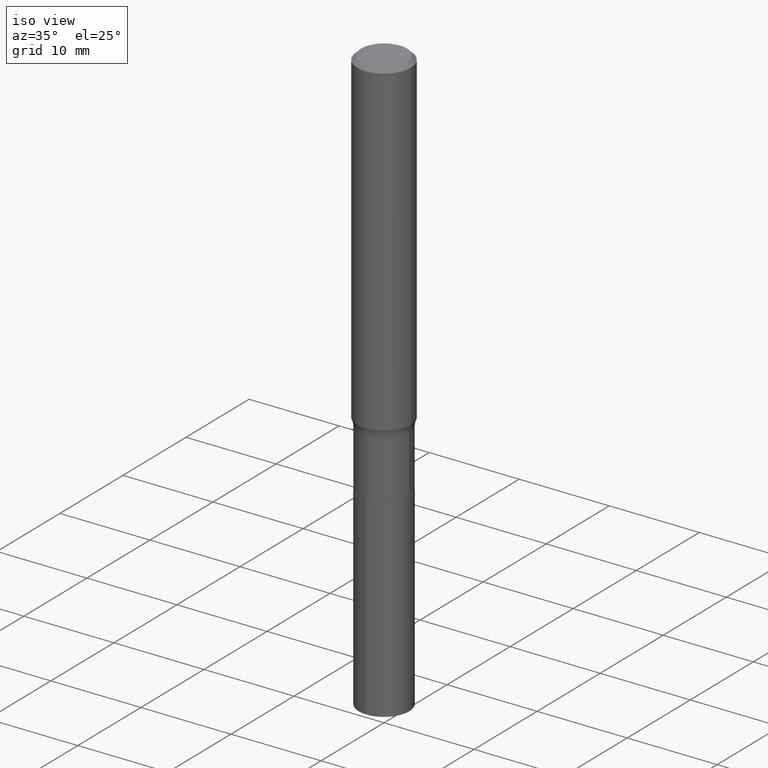
[diagram: clean part render]
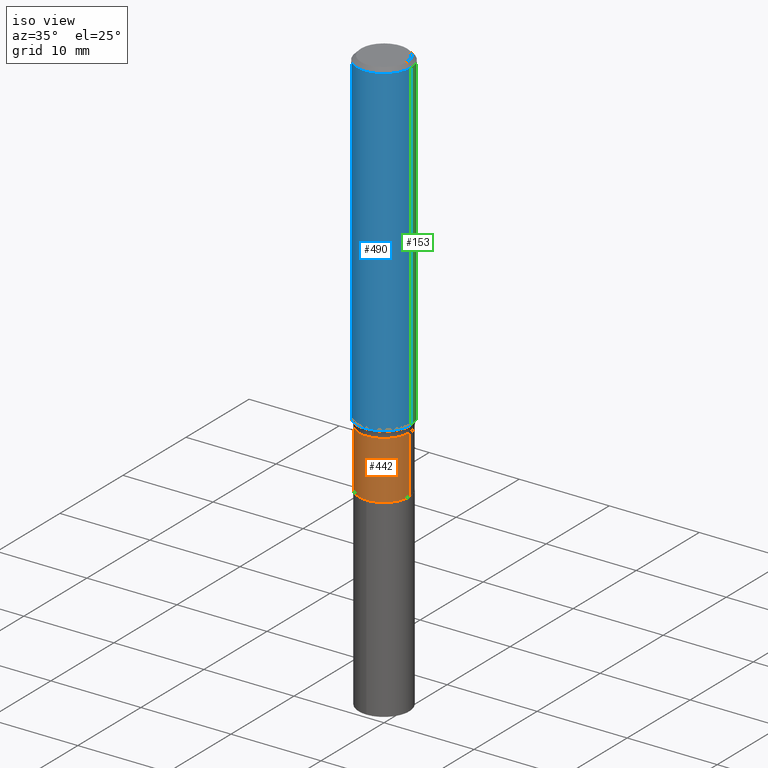
[diagram: same view with three faces highlighted in distinct colors, each labeled with its STEP entity id]
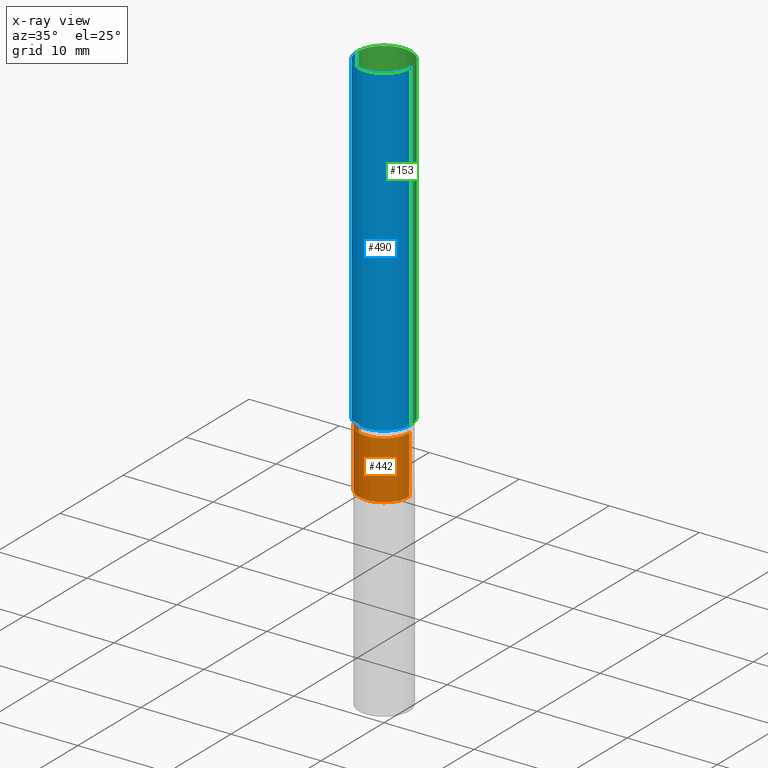
[diagram: x-ray of the same camera — body ghosted, the three highlighted faces saturated]
A machine part, iso view with three faces highlighted in distinct colors.
The next image is the same camera in x-ray (body ghosted, the three faces saturated) — at least one of them is partly hidden behind the body in this view.
Their STEP definitions:

[orange] entity #442 — the highlighted cylindrical surface (edge-blend (fillet) strip) has radius 2.8003 mm, axis along (-0, 0, 1).
#9 = ORIENTED_EDGE ( 'NONE', *, *, #61, .F. ) ;
#16 = CARTESIAN_POINT ( 'NONE',  ( -0.1102499999999999869, 7.833733661755103618E-16, -5.423125937006033469E-30 ) ) ;
#26 = VERTEX_POINT ( 'NONE', #350 ) ;
#37 = DIRECTION ( 'NONE',  ( 1.000000000000000000, -6.982962677686266711E-15, 4.876176775795936353E-29 ) ) ;
#59 = CARTESIAN_POINT ( 'NONE',  ( -0.1102499999999999730, -4.766161647848727228E-15, -1.462899999999999867 ) ) ;
#61 = EDGE_CURVE ( 'NONE', #26, #85, #162, .T. ) ;
#69 = CARTESIAN_POINT ( 'NONE',  ( 0.000000000000000000, 0.000000000000000000, 0.000000000000000000 ) ) ;
#79 = ORIENTED_EDGE ( 'NONE', *, *, #221, .F. ) ;
#85 = VERTEX_POINT ( 'NONE', #59 ) ;
#98 = VECTOR ( 'NONE', #323, 39.37007874015748143 ) ;
#107 = FACE_OUTER_BOUND ( 'NONE', #163, .T. ) ;
#121 = CARTESIAN_POINT ( 'NONE',  ( 3.577476316568235617E-29, -5.107688050593637090E-15, -1.462899999999999867 ) ) ;
#128 = ORIENTED_EDGE ( 'NONE', *, *, #340, .T. ) ;
#129 = DIRECTION ( 'NONE',  ( 1.000000000000000000, -6.982962677686261977E-15, 0.000000000000000000 ) ) ;
#140 = VERTEX_POINT ( 'NONE', #436 ) ;
#162 = LINE ( 'NONE', #16, #298 ) ;
#163 = EDGE_LOOP ( 'NONE', ( #9, #128, #216, #79 ) ) ;
#164 = CARTESIAN_POINT ( 'NONE',  ( 0.1102499999999999869, -7.698716352149107826E-16, 5.375984895315018903E-30 ) ) ;
#188 = DIRECTION ( 'NONE',  ( 1.000000000000000000, -6.982962677686269077E-15, 0.000000000000000000 ) ) ;
#189 = EDGE_CURVE ( 'NONE', #140, #331, #434, .T. ) ;
#198 = DIRECTION ( 'NONE',  ( -2.445468806185136597E-29, 3.491481338843145583E-15, 1.000000000000000000 ) ) ;
#216 = ORIENTED_EDGE ( 'NONE', *, *, #189, .T. ) ;
#221 = EDGE_CURVE ( 'NONE', #85, #331, #236, .T. ) ;
#224 = DIRECTION ( 'NONE',  ( -2.445468806185136597E-29, 3.491481338843145583E-15, 1.000000000000000000 ) ) ;
#229 = CARTESIAN_POINT ( 'NONE',  ( 0.1102499999999999730, -5.877559685808547774E-15, -1.462899999999999867 ) ) ;
#236 = CIRCLE ( 'NONE', #424, 0.1102499999999999730 ) ;
#237 = AXIS2_PLACEMENT_3D ( 'NONE', #264, #198, #188 ) ;
#264 = CARTESIAN_POINT ( 'NONE',  ( 4.196424471413694799E-29, -5.991381977454837695E-15, -1.715999999999999970 ) ) ;
#298 = VECTOR ( 'NONE', #318, 39.37007874015748143 ) ;
#318 = DIRECTION ( 'NONE',  ( -2.445468806185136877E-29, 3.491481338843145188E-15, 1.000000000000000000 ) ) ;
#323 = DIRECTION ( 'NONE',  ( -2.445468806185136877E-29, 3.491481338843145188E-15, 1.000000000000000000 ) ) ;
#326 = AXIS2_PLACEMENT_3D ( 'NONE', #69, #224, #37 ) ;
#331 = VERTEX_POINT ( 'NONE', #229 ) ;
#340 = EDGE_CURVE ( 'NONE', #26, #140, #396, .T. ) ;
#350 = CARTESIAN_POINT ( 'NONE',  ( -0.1102500000000000008, -4.766161647848727228E-15, -1.715999999999999970 ) ) ;
#396 = CIRCLE ( 'NONE', #237, 0.1102500000000000008 ) ;
#411 = CYLINDRICAL_SURFACE ( 'NONE', #326, 0.1102499999999999869 ) ;
#424 = AXIS2_PLACEMENT_3D ( 'NONE', #121, #426, #129 ) ;
#426 = DIRECTION ( 'NONE',  ( -2.445468806185136597E-29, 3.491481338843145583E-15, 1.000000000000000000 ) ) ;
#434 = LINE ( 'NONE', #164, #98 ) ;
#436 = CARTESIAN_POINT ( 'NONE',  ( 0.1102500000000000008, -6.761253612669749168E-15, -1.715999999999999970 ) ) ;
#442 = ADVANCED_FACE ( 'NONE', ( #107 ), #411, .T. ) ;

[blue] entity #490 — the highlighted cylindrical surface (edge-blend (fillet) strip) has radius 2.9997 mm, axis along (-0, 0, 1).
#40 = DIRECTION ( 'NONE',  ( -2.445468806185136877E-29, 3.491481338843145188E-15, 1.000000000000000000 ) ) ;
#52 = CARTESIAN_POINT ( 'NONE',  ( 0.1181000000000001632, -5.813307854363494347E-15, -1.428797544076708670 ) ) ;
#60 = CARTESIAN_POINT ( 'NONE',  ( -0.1181000000000001632, -4.149468991196065521E-15, -1.428797544076708670 ) ) ;
#93 = VERTEX_POINT ( 'NONE', #355 ) ;
#96 = CARTESIAN_POINT ( 'NONE',  ( 4.332147990156996744E-31, -6.185159191760670395E-17, -0.01771500000000010913 ) ) ;
#97 = CARTESIAN_POINT ( 'NONE',  ( 0.000000000000000000, 0.000000000000000000, 0.000000000000000000 ) ) ;
#99 = EDGE_CURVE ( 'NONE', #124, #145, #244, .T. ) ;
#124 = VERTEX_POINT ( 'NONE', #60 ) ;
#127 = CARTESIAN_POINT ( 'NONE',  ( 0.1180999999999999966, -8.865394841523547570E-16, -0.01771500000000010913 ) ) ;
#141 = AXIS2_PLACEMENT_3D ( 'NONE', #321, #393, #429 ) ;
#145 = VERTEX_POINT ( 'NONE', #52 ) ;
#147 = VERTEX_POINT ( 'NONE', #127 ) ;
#208 = EDGE_CURVE ( 'NONE', #124, #93, #243, .T. ) ;
#213 = DIRECTION ( 'NONE',  ( -2.445468806185136597E-29, 3.491481338843145583E-15, 1.000000000000000000 ) ) ;
#225 = AXIS2_PLACEMENT_3D ( 'NONE', #97, #250, #367 ) ;
#243 = LINE ( 'NONE', #475, #338 ) ;
#244 = CIRCLE ( 'NONE', #141, 0.1181000000000001632 ) ;
#250 = DIRECTION ( 'NONE',  ( -2.445468806185136597E-29, 3.491481338843145583E-15, 1.000000000000000000 ) ) ;
#252 = CYLINDRICAL_SURFACE ( 'NONE', #225, 0.1181000000000000799 ) ;
#281 = EDGE_CURVE ( 'NONE', #93, #147, #415, .T. ) ;
#284 = AXIS2_PLACEMENT_3D ( 'NONE', #96, #213, #368 ) ;
#302 = EDGE_CURVE ( 'NONE', #145, #147, #492, .T. ) ;
#317 = DIRECTION ( 'NONE',  ( -2.445468806185136877E-29, 3.491481338843145188E-15, 1.000000000000000000 ) ) ;
#321 = CARTESIAN_POINT ( 'NONE',  ( 3.494079824393523856E-29, -4.988619962128744507E-15, -1.428797544076708670 ) ) ;
#338 = VECTOR ( 'NONE', #317, 39.37007874015748143 ) ;
#355 = CARTESIAN_POINT ( 'NONE',  ( -0.1180999999999999966, -1.686084806090496170E-15, -0.01771500000000010913 ) ) ;
#367 = DIRECTION ( 'NONE',  ( 1.000000000000000000, -6.982962677686266711E-15, 4.876176775795936353E-29 ) ) ;
#368 = DIRECTION ( 'NONE',  ( 1.000000000000000000, -6.982962677686266711E-15, 0.000000000000000000 ) ) ;
#383 = ORIENTED_EDGE ( 'NONE', *, *, #99, .T. ) ;
#392 = EDGE_LOOP ( 'NONE', ( #428, #383, #464, #455 ) ) ;
#393 = DIRECTION ( 'NONE',  ( -2.445468806185136597E-29, 3.491481338843145583E-15, 1.000000000000000000 ) ) ;
#415 = CIRCLE ( 'NONE', #284, 0.1180999999999999966 ) ;
#421 = CARTESIAN_POINT ( 'NONE',  ( 0.1181000000000000799, -8.246878922347486570E-16, 5.758764772215004644E-30 ) ) ;
#428 = ORIENTED_EDGE ( 'NONE', *, *, #208, .F. ) ;
#429 = DIRECTION ( 'NONE',  ( 1.000000000000000000, -6.982962677686270655E-15, 0.000000000000000000 ) ) ;
#438 = FACE_OUTER_BOUND ( 'NONE', #392, .T. ) ;
#455 = ORIENTED_EDGE ( 'NONE', *, *, #281, .F. ) ;
#464 = ORIENTED_EDGE ( 'NONE', *, *, #302, .T. ) ;
#473 = VECTOR ( 'NONE', #40, 39.37007874015748143 ) ;
#475 = CARTESIAN_POINT ( 'NONE',  ( -0.1181000000000000799, 8.391509709326788873E-16, -5.809262341591047988E-30 ) ) ;
#490 = ADVANCED_FACE ( 'NONE', ( #438 ), #252, .T. ) ;
#492 = LINE ( 'NONE', #421, #473 ) ;

[green] entity #153 — the highlighted cylindrical surface (edge-blend (fillet) strip) has radius 2.9997 mm, axis along (-0, 0, 1).
#1 = DIRECTION ( 'NONE',  ( 1.000000000000000000, -6.982962677686266711E-15, 0.000000000000000000 ) ) ;
#6 = CARTESIAN_POINT ( 'NONE',  ( 3.494079824393523856E-29, -4.988619962128744507E-15, -1.428797544076708670 ) ) ;
#22 = EDGE_CURVE ( 'NONE', #147, #93, #211, .T. ) ;
#40 = DIRECTION ( 'NONE',  ( -2.445468806185136877E-29, 3.491481338843145188E-15, 1.000000000000000000 ) ) ;
#52 = CARTESIAN_POINT ( 'NONE',  ( 0.1181000000000001632, -5.813307854363494347E-15, -1.428797544076708670 ) ) ;
#58 = DIRECTION ( 'NONE',  ( 1.000000000000000000, -6.982962677686270655E-15, 0.000000000000000000 ) ) ;
#60 = CARTESIAN_POINT ( 'NONE',  ( -0.1181000000000001632, -4.149468991196065521E-15, -1.428797544076708670 ) ) ;
#62 = AXIS2_PLACEMENT_3D ( 'NONE', #87, #466, #280 ) ;
#65 = EDGE_CURVE ( 'NONE', #145, #124, #291, .T. ) ;
#87 = CARTESIAN_POINT ( 'NONE',  ( 0.000000000000000000, 0.000000000000000000, 0.000000000000000000 ) ) ;
#93 = VERTEX_POINT ( 'NONE', #355 ) ;
#109 = CARTESIAN_POINT ( 'NONE',  ( 4.332147990156996744E-31, -6.185159191760670395E-17, -0.01771500000000010913 ) ) ;
#124 = VERTEX_POINT ( 'NONE', #60 ) ;
#127 = CARTESIAN_POINT ( 'NONE',  ( 0.1180999999999999966, -8.865394841523547570E-16, -0.01771500000000010913 ) ) ;
#145 = VERTEX_POINT ( 'NONE', #52 ) ;
#147 = VERTEX_POINT ( 'NONE', #127 ) ;
#153 = ADVANCED_FACE ( 'NONE', ( #362 ), #158, .T. ) ;
#158 = CYLINDRICAL_SURFACE ( 'NONE', #62, 0.1181000000000000799 ) ;
#193 = DIRECTION ( 'NONE',  ( -2.445468806185136597E-29, 3.491481338843145583E-15, 1.000000000000000000 ) ) ;
#205 = DIRECTION ( 'NONE',  ( -2.445468806185136597E-29, 3.491481338843145583E-15, 1.000000000000000000 ) ) ;
#208 = EDGE_CURVE ( 'NONE', #124, #93, #243, .T. ) ;
#211 = CIRCLE ( 'NONE', #275, 0.1180999999999999966 ) ;
#235 = EDGE_LOOP ( 'NONE', ( #452, #441, #306, #314 ) ) ;
#243 = LINE ( 'NONE', #475, #338 ) ;
#255 = AXIS2_PLACEMENT_3D ( 'NONE', #6, #205, #58 ) ;
#275 = AXIS2_PLACEMENT_3D ( 'NONE', #109, #193, #1 ) ;
#280 = DIRECTION ( 'NONE',  ( 1.000000000000000000, -6.982962677686266711E-15, 4.876176775795936353E-29 ) ) ;
#291 = CIRCLE ( 'NONE', #255, 0.1181000000000001632 ) ;
#302 = EDGE_CURVE ( 'NONE', #145, #147, #492, .T. ) ;
#306 = ORIENTED_EDGE ( 'NONE', *, *, #22, .F. ) ;
#314 = ORIENTED_EDGE ( 'NONE', *, *, #302, .F. ) ;
#317 = DIRECTION ( 'NONE',  ( -2.445468806185136877E-29, 3.491481338843145188E-15, 1.000000000000000000 ) ) ;
#338 = VECTOR ( 'NONE', #317, 39.37007874015748143 ) ;
#355 = CARTESIAN_POINT ( 'NONE',  ( -0.1180999999999999966, -1.686084806090496170E-15, -0.01771500000000010913 ) ) ;
#362 = FACE_OUTER_BOUND ( 'NONE', #235, .T. ) ;
#421 = CARTESIAN_POINT ( 'NONE',  ( 0.1181000000000000799, -8.246878922347486570E-16, 5.758764772215004644E-30 ) ) ;
#441 = ORIENTED_EDGE ( 'NONE', *, *, #208, .T. ) ;
#452 = ORIENTED_EDGE ( 'NONE', *, *, #65, .T. ) ;
#466 = DIRECTION ( 'NONE',  ( -2.445468806185136597E-29, 3.491481338843145583E-15, 1.000000000000000000 ) ) ;
#473 = VECTOR ( 'NONE', #40, 39.37007874015748143 ) ;
#475 = CARTESIAN_POINT ( 'NONE',  ( -0.1181000000000000799, 8.391509709326788873E-16, -5.809262341591047988E-30 ) ) ;
#492 = LINE ( 'NONE', #421, #473 ) ;